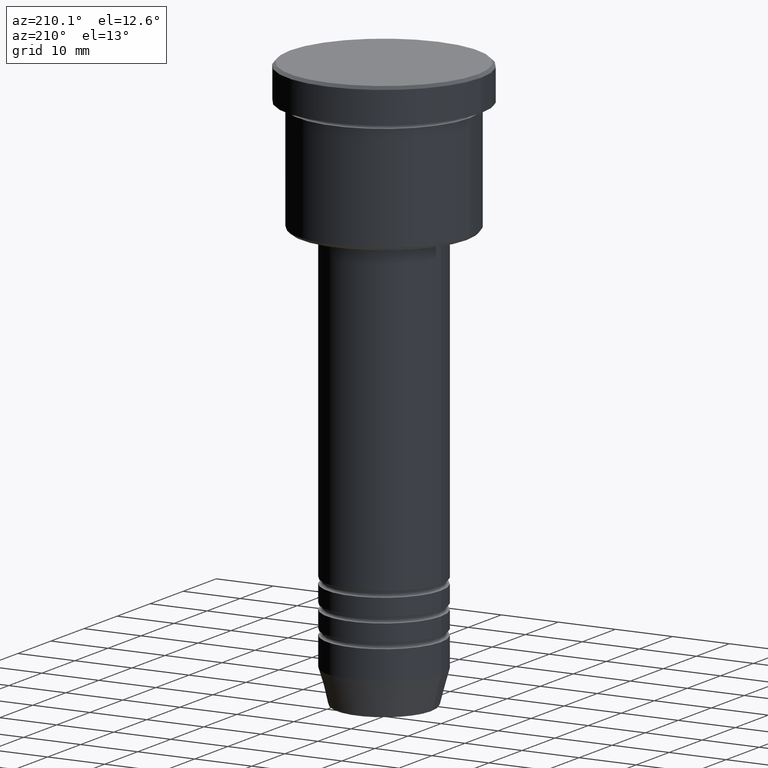
[diagram: clean part render]
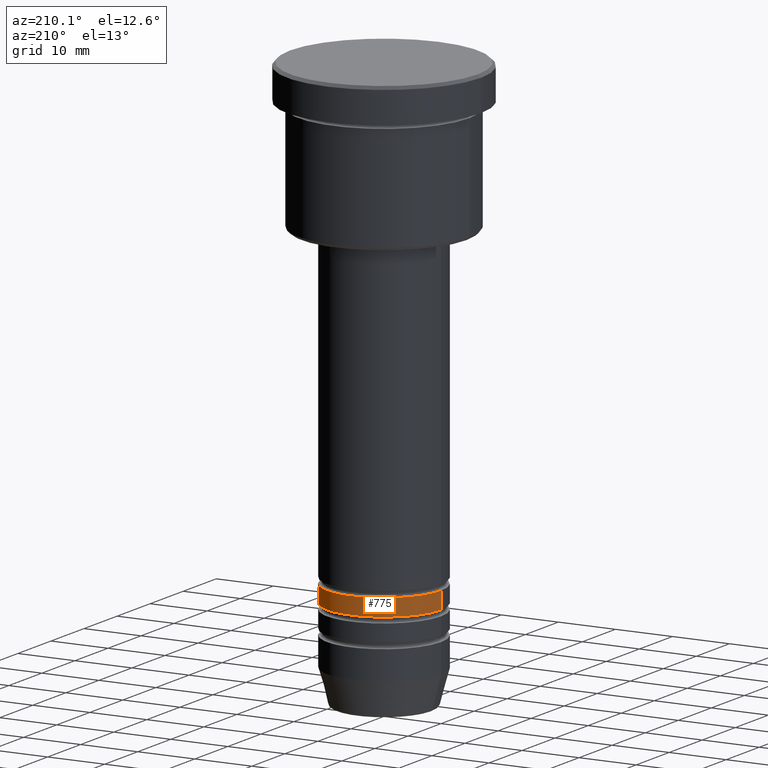
[diagram: same view with one face highlighted and labeled with its STEP entity id]
A machine part, auxiliary view. The second image highlights one B-rep face of the part: STEP entity #775.
In plain terms, the highlighted cylindrical surface (partial cylindrical patch) has radius 10 mm, axis along (-0, -0, 1).
Its self-contained STEP definition (entity closure, byte-faithful):
#18 = CARTESIAN_POINT ( 'NONE',  ( 0.000000000000000000, 0.000000000000000000, -83.99999999999998579 ) ) ;
#23 = DIRECTION ( 'NONE',  ( 1.000000000000000000, 0.000000000000000000, 0.000000000000000000 ) ) ;
#41 = LINE ( 'NONE', #392, #942 ) ;
#93 = CARTESIAN_POINT ( 'NONE',  ( 10.00000000000000178, 0.000000000000000000, 0.000000000000000000 ) ) ;
#118 = CARTESIAN_POINT ( 'NONE',  ( 0.000000000000000000, 0.000000000000000000, 0.000000000000000000 ) ) ;
#130 = FACE_OUTER_BOUND ( 'NONE', #471, .T. ) ;
#140 = AXIS2_PLACEMENT_3D ( 'NONE', #797, #528, #336 ) ;
#175 = EDGE_CURVE ( 'NONE', #899, #605, #652, .T. ) ;
#210 = DIRECTION ( 'NONE',  ( -0.000000000000000000, -0.000000000000000000, 1.000000000000000000 ) ) ;
#247 = CARTESIAN_POINT ( 'NONE',  ( 10.00000000000000178, 0.000000000000000000, -83.99999999999998579 ) ) ;
#254 = AXIS2_PLACEMENT_3D ( 'NONE', #118, #210, #576 ) ;
#295 = VECTOR ( 'NONE', #451, 1000.000000000000000 ) ;
#336 = DIRECTION ( 'NONE',  ( 1.000000000000000000, 0.000000000000000000, 0.000000000000000000 ) ) ;
#392 = CARTESIAN_POINT ( 'NONE',  ( -10.00000000000000178, 1.224646799147353454E-15, 0.000000000000000000 ) ) ;
#434 = ORIENTED_EDGE ( 'NONE', *, *, #467, .F. ) ;
#439 = AXIS2_PLACEMENT_3D ( 'NONE', #18, #1000, #23 ) ;
#451 = DIRECTION ( 'NONE',  ( -0.000000000000000000, -0.000000000000000000, 1.000000000000000000 ) ) ;
#467 = EDGE_CURVE ( 'NONE', #605, #500, #671, .T. ) ;
#471 = EDGE_LOOP ( 'NONE', ( #705, #745, #434, #1169 ) ) ;
#500 = VERTEX_POINT ( 'NONE', #607 ) ;
#510 = CARTESIAN_POINT ( 'NONE',  ( -10.00000000000000178, 1.224646799147353454E-15, -83.99999999999998579 ) ) ;
#528 = DIRECTION ( 'NONE',  ( -0.000000000000000000, -0.000000000000000000, 1.000000000000000000 ) ) ;
#536 = EDGE_CURVE ( 'NONE', #899, #1183, #959, .T. ) ;
#576 = DIRECTION ( 'NONE',  ( 1.000000000000000000, 0.000000000000000000, 0.000000000000000000 ) ) ;
#605 = VERTEX_POINT ( 'NONE', #917 ) ;
#607 = CARTESIAN_POINT ( 'NONE',  ( -10.00000000000000000, 1.224646799147353256E-15, -80.99999999999998579 ) ) ;
#652 = LINE ( 'NONE', #93, #295 ) ;
#671 = CIRCLE ( 'NONE', #140, 10.00000000000000000 ) ;
#684 = EDGE_CURVE ( 'NONE', #1183, #500, #41, .T. ) ;
#705 = ORIENTED_EDGE ( 'NONE', *, *, #536, .T. ) ;
#745 = ORIENTED_EDGE ( 'NONE', *, *, #684, .T. ) ;
#775 = ADVANCED_FACE ( 'NONE', ( #130 ), #1031, .T. ) ;
#797 = CARTESIAN_POINT ( 'NONE',  ( 0.000000000000000000, 0.000000000000000000, -80.99999999999998579 ) ) ;
#899 = VERTEX_POINT ( 'NONE', #247 ) ;
#917 = CARTESIAN_POINT ( 'NONE',  ( 10.00000000000000000, 0.000000000000000000, -80.99999999999998579 ) ) ;
#942 = VECTOR ( 'NONE', #1133, 1000.000000000000000 ) ;
#959 = CIRCLE ( 'NONE', #439, 10.00000000000000178 ) ;
#1000 = DIRECTION ( 'NONE',  ( -0.000000000000000000, -0.000000000000000000, 1.000000000000000000 ) ) ;
#1031 = CYLINDRICAL_SURFACE ( 'NONE', #254, 10.00000000000000178 ) ;
#1133 = DIRECTION ( 'NONE',  ( -0.000000000000000000, -0.000000000000000000, 1.000000000000000000 ) ) ;
#1169 = ORIENTED_EDGE ( 'NONE', *, *, #175, .F. ) ;
#1183 = VERTEX_POINT ( 'NONE', #510 ) ;